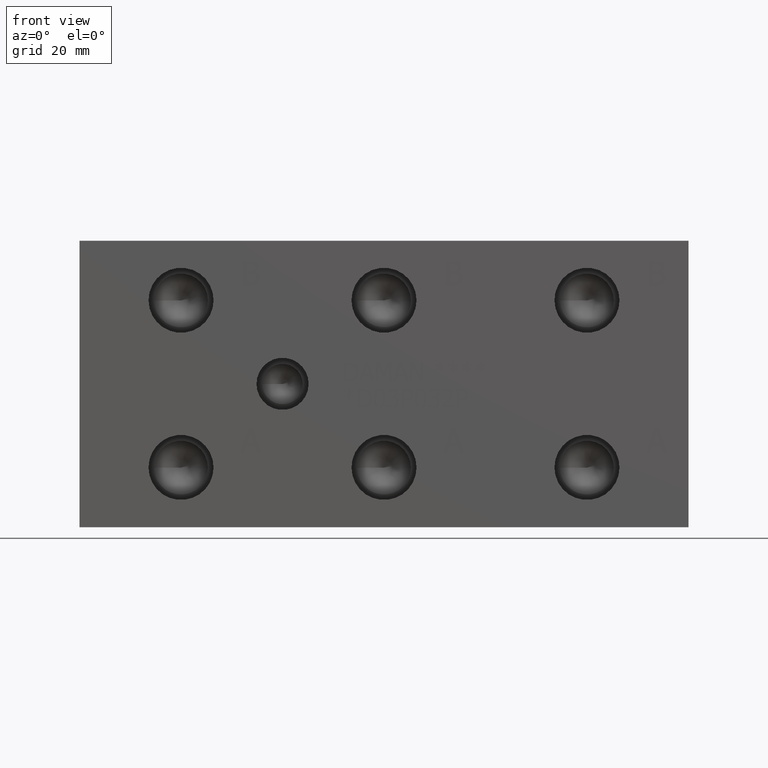
[diagram: clean part render]
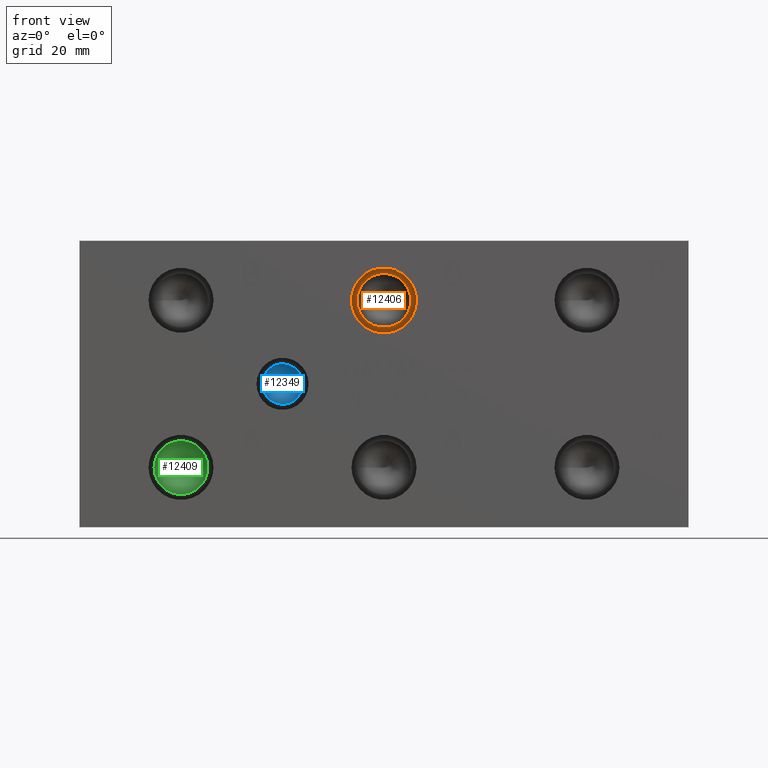
[diagram: same view with three faces highlighted in distinct colors, each labeled with its STEP entity id]
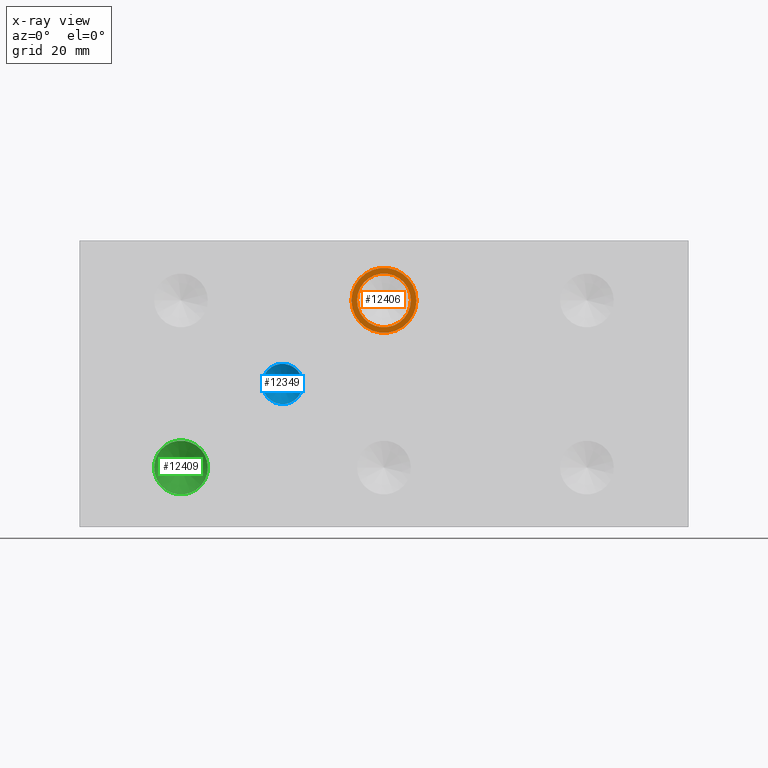
[diagram: x-ray of the same camera — body ghosted, the three highlighted faces saturated]
A machine part, front view with three faces highlighted in distinct colors.
The next image is the same camera in x-ray (body ghosted, the three faces saturated) — at least one of them is partly hidden behind the body in this view.
Their STEP definitions:

[orange] entity #12406 — the highlighted planar face has unit normal (0, -1, 0).
#237=CIRCLE('',#13004,8.6487);
#238=CIRCLE('',#13005,8.6487);
#239=CIRCLE('',#13006,7.1501);
#468=FACE_BOUND('',#2134,.T.);
#849=PLANE('',#13003);
#1417=FACE_OUTER_BOUND('',#2133,.T.);
#2133=EDGE_LOOP('',(#10721,#10722));
#2134=EDGE_LOOP('',(#10723));
#5875=VERTEX_POINT('',#21038);
#5876=VERTEX_POINT('',#21039);
#5877=VERTEX_POINT('',#21042);
#7549=EDGE_CURVE('',#5875,#5876,#237,.T.);
#7550=EDGE_CURVE('',#5876,#5875,#238,.T.);
#7551=EDGE_CURVE('',#5877,#5877,#239,.T.);
#10721=ORIENTED_EDGE('',*,*,#7549,.T.);
#10722=ORIENTED_EDGE('',*,*,#7550,.T.);
#10723=ORIENTED_EDGE('',*,*,#7551,.F.);
#12406=ADVANCED_FACE('',(#1417,#468),#849,.T.);
#13003=AXIS2_PLACEMENT_3D('',#21037,#15291,#15292);
#13004=AXIS2_PLACEMENT_3D('',#21040,#15293,#15294);
#13005=AXIS2_PLACEMENT_3D('',#21041,#15295,#15296);
#13006=AXIS2_PLACEMENT_3D('',#21043,#15297,#15298);
#15291=DIRECTION('center_axis',(0.,-1.,0.));
#15292=DIRECTION('ref_axis',(1.,0.,0.));
#15293=DIRECTION('center_axis',(0.,-1.,0.));
#15294=DIRECTION('ref_axis',(1.,0.,0.));
#15295=DIRECTION('center_axis',(0.,-1.,0.));
#15296=DIRECTION('ref_axis',(1.,0.,0.));
#15297=DIRECTION('center_axis',(0.,-1.,0.));
#15298=DIRECTION('ref_axis',(1.,0.,0.));
#21037=CARTESIAN_POINT('Origin',(80.9498,11.7348,60.325));
#21038=CARTESIAN_POINT('',(89.5985,11.7348,60.325));
#21039=CARTESIAN_POINT('',(72.3011,11.7348,60.325));
#21040=CARTESIAN_POINT('Origin',(80.9498,11.7348,60.325));
#21041=CARTESIAN_POINT('Origin',(80.9498,11.7348,60.325));
#21042=CARTESIAN_POINT('',(73.7997,11.7348,60.325));
#21043=CARTESIAN_POINT('Origin',(80.9498,11.7348,60.325));

[blue] entity #12349 — the highlighted conical surface has half-angle 60 deg.
#87=CONICAL_SURFACE('',#12872,2.6797,1.0471975511966);
#163=CIRCLE('',#12873,5.3594);
#164=CIRCLE('',#12874,5.3594);
#1360=FACE_OUTER_BOUND('',#2064,.T.);
#2064=EDGE_LOOP('',(#10461,#10462,#10463,#10464));
#3283=LINE('',#20779,#4417);
#4417=VECTOR('',#14988,2.6797);
#5788=VERTEX_POINT('',#20775);
#5789=VERTEX_POINT('',#20776);
#5790=VERTEX_POINT('',#20778);
#7430=EDGE_CURVE('',#5788,#5789,#163,.T.);
#7431=EDGE_CURVE('',#5789,#5790,#3283,.T.);
#7432=EDGE_CURVE('',#5789,#5788,#164,.T.);
#10461=ORIENTED_EDGE('',*,*,#7430,.T.);
#10462=ORIENTED_EDGE('',*,*,#7431,.T.);
#10463=ORIENTED_EDGE('',*,*,#7431,.F.);
#10464=ORIENTED_EDGE('',*,*,#7432,.T.);
#12349=ADVANCED_FACE('',(#1360),#87,.F.);
#12872=AXIS2_PLACEMENT_3D('',#20774,#14984,#14985);
#12873=AXIS2_PLACEMENT_3D('',#20777,#14986,#14987);
#12874=AXIS2_PLACEMENT_3D('',#20780,#14989,#14990);
#14984=DIRECTION('center_axis',(0.,-1.,0.));
#14985=DIRECTION('ref_axis',(1.,0.,0.));
#14986=DIRECTION('center_axis',(0.,-1.,0.));
#14987=DIRECTION('ref_axis',(1.,0.,0.));
#14988=DIRECTION('',(0.866025403784439,0.5,1.06057523872491E-16));
#14989=DIRECTION('center_axis',(0.,-1.,0.));
#14990=DIRECTION('ref_axis',(1.,0.,0.));
#20774=CARTESIAN_POINT('Origin',(53.975,13.2611555163474,38.1));
#20775=CARTESIAN_POINT('',(59.3344,11.71403,38.1));
#20776=CARTESIAN_POINT('',(48.6156,11.71403,38.1));
#20777=CARTESIAN_POINT('Origin',(53.975,11.71403,38.1));
#20778=CARTESIAN_POINT('',(53.975,14.8082810326949,38.1));
#20779=CARTESIAN_POINT('',(51.2953,13.2611555163474,38.1));
#20780=CARTESIAN_POINT('Origin',(53.975,11.71403,38.1));

[green] entity #12409 — the highlighted conical surface has half-angle 60 deg.
#104=CONICAL_SURFACE('',#13009,3.57505,1.0471975511966);
#240=CIRCLE('',#13010,7.1501);
#241=CIRCLE('',#13011,7.1501);
#1420=FACE_OUTER_BOUND('',#2137,.T.);
#2137=EDGE_LOOP('',(#10735,#10736,#10737,#10738));
#3330=LINE('',#21053,#4464);
#4464=VECTOR('',#15309,3.57505);
#5878=VERTEX_POINT('',#21049);
#5879=VERTEX_POINT('',#21050);
#5880=VERTEX_POINT('',#21052);
#7554=EDGE_CURVE('',#5878,#5879,#240,.T.);
#7555=EDGE_CURVE('',#5879,#5880,#3330,.T.);
#7556=EDGE_CURVE('',#5879,#5878,#241,.T.);
#10735=ORIENTED_EDGE('',*,*,#7554,.T.);
#10736=ORIENTED_EDGE('',*,*,#7555,.T.);
#10737=ORIENTED_EDGE('',*,*,#7555,.F.);
#10738=ORIENTED_EDGE('',*,*,#7556,.T.);
#12409=ADVANCED_FACE('',(#1420),#104,.F.);
#13009=AXIS2_PLACEMENT_3D('',#21048,#15305,#15306);
#13010=AXIS2_PLACEMENT_3D('',#21051,#15307,#15308);
#13011=AXIS2_PLACEMENT_3D('',#21054,#15310,#15311);
#15305=DIRECTION('center_axis',(0.,-1.,0.));
#15306=DIRECTION('ref_axis',(1.,0.,0.));
#15307=DIRECTION('center_axis',(0.,-1.,0.));
#15308=DIRECTION('ref_axis',(1.,0.,0.));
#15309=DIRECTION('',(0.866025403784439,0.5,1.06057523872491E-16));
#15310=DIRECTION('center_axis',(0.,-1.,0.));
#15311=DIRECTION('ref_axis',(1.,0.,0.));
#21048=CARTESIAN_POINT('Origin',(26.9748,14.2116660798664,15.875));
#21049=CARTESIAN_POINT('',(34.1249,12.14761,15.875));
#21050=CARTESIAN_POINT('',(19.8247,12.14761,15.875));
#21051=CARTESIAN_POINT('Origin',(26.9748,12.14761,15.875));
#21052=CARTESIAN_POINT('',(26.9748,16.2757221597327,15.875));
#21053=CARTESIAN_POINT('',(23.39975,14.2116660798664,15.875));
#21054=CARTESIAN_POINT('Origin',(26.9748,12.14761,15.875));